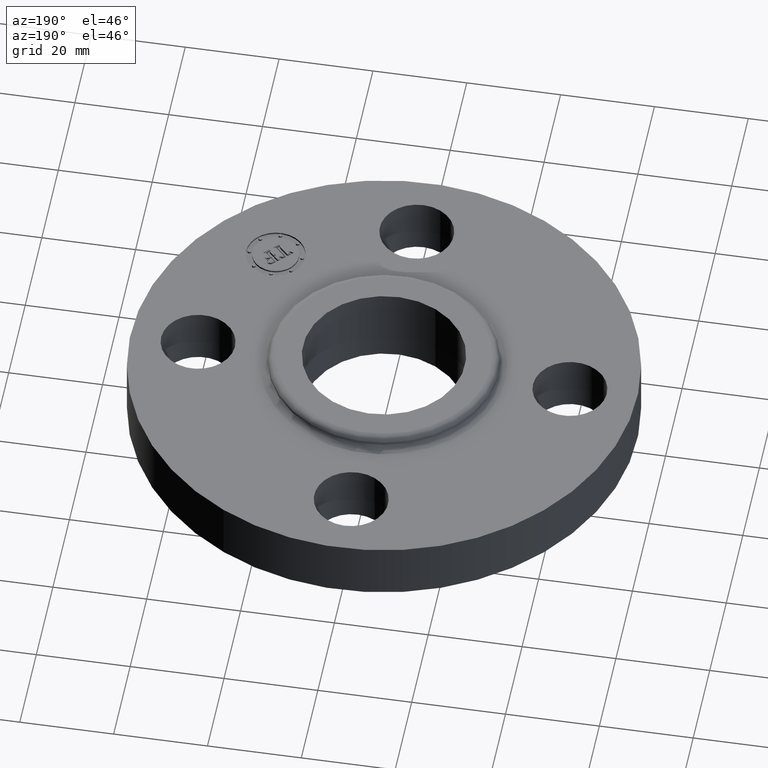
[diagram: clean part render]
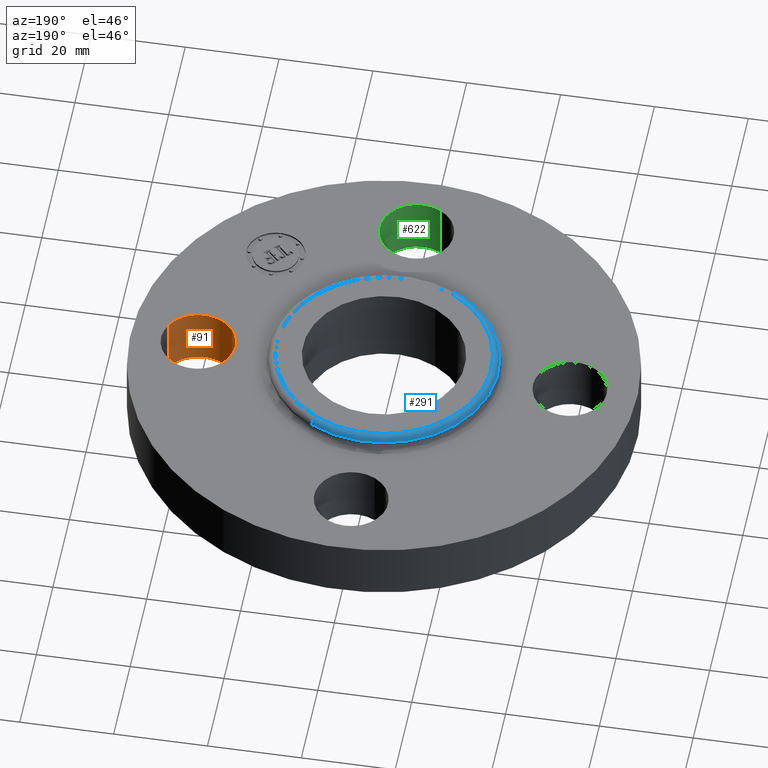
[diagram: same view with three faces highlighted in distinct colors, each labeled with its STEP entity id]
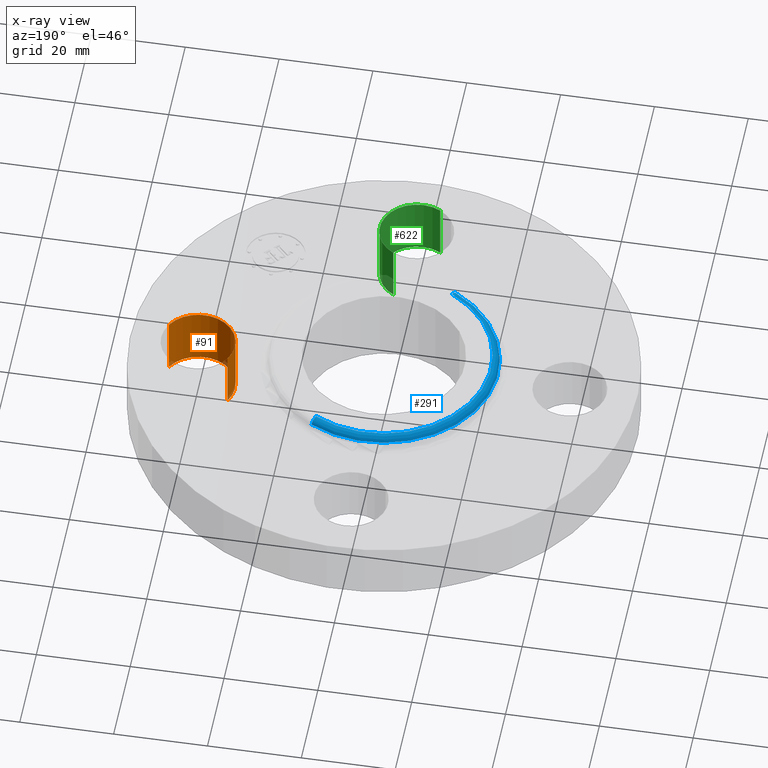
[diagram: x-ray of the same camera — body ghosted, the three highlighted faces saturated]
A machine part, auxiliary view with three faces highlighted in distinct colors.
The next image is the same camera in x-ray (body ghosted, the three faces saturated) — at least one of them is partly hidden behind the body in this view.
Their STEP definitions:

[orange] entity #91 — the highlighted cylindrical surface (partial cylindrical patch) has radius 7.874 mm, axis along (0, -0, -1).
#38=AXIS2_PLACEMENT_3D('Cylinder Axis2P3D',#35,#36,#37) ;
#77=AXIS2_PLACEMENT_3D('Circle Axis2P3D',#75,#76,$) ;
#82=AXIS2_PLACEMENT_3D('Circle Axis2P3D',#80,#81,$) ;
#35=CARTESIAN_POINT('Axis2P3D Location',(1.56000000001,0.,0.496062992128)) ;
#40=CARTESIAN_POINT('Line Origine',(1.28794940582,0.148621916968,0.250000000001)) ;
#44=CARTESIAN_POINT('Vertex',(1.28794940582,0.148621916968,0.)) ;
#46=CARTESIAN_POINT('Vertex',(1.28794940582,0.148621916968,0.500000000002)) ;
#53=CARTESIAN_POINT('Vertex',(1.83205059419,-0.148621916968,0.)) ;
#56=CARTESIAN_POINT('Line Origine',(1.83205059419,-0.148621916968,0.250000000001)) ;
#60=CARTESIAN_POINT('Vertex',(1.83205059419,-0.148621916968,0.500000000002)) ;
#75=CARTESIAN_POINT('Axis2P3D Location',(1.56000000001,0.,0.)) ;
#80=CARTESIAN_POINT('Axis2P3D Location',(1.56000000001,0.,0.500000000002)) ;
#36=DIRECTION('Axis2P3D Direction',(0.,-0.,-0.0393700787402)) ;
#37=DIRECTION('Axis2P3D XDirection',(0.0345504945626,-0.0188750212049,0.)) ;
#41=DIRECTION('Vector Direction',(0.,0.,-0.0393700787402)) ;
#57=DIRECTION('Vector Direction',(0.,0.,-0.0393700787402)) ;
#76=DIRECTION('Axis2P3D Direction',(0.,-0.,-0.0393700787402)) ;
#81=DIRECTION('Axis2P3D Direction',(0.,-0.,-0.0393700787402)) ;
#42=VECTOR('Line Direction',#41,0.0393700787402) ;
#58=VECTOR('Line Direction',#57,0.0393700787402) ;
#86=ORIENTED_EDGE('',*,*,#62,.F.) ;
#87=ORIENTED_EDGE('',*,*,#79,.T.) ;
#88=ORIENTED_EDGE('',*,*,#48,.T.) ;
#89=ORIENTED_EDGE('',*,*,#84,.F.) ;
#91=ADVANCED_FACE('PartBody',(#90),#39,.F.) ;
#78=CIRCLE('generated circle',#77,0.310000000001) ;
#83=CIRCLE('generated circle',#82,0.310000000001) ;
#39=CYLINDRICAL_SURFACE('generated cylinder',#38,0.310000000001) ;
#48=EDGE_CURVE('',#45,#47,#43,.F.) ;
#62=EDGE_CURVE('',#54,#61,#59,.F.) ;
#79=EDGE_CURVE('',#54,#45,#78,.T.) ;
#84=EDGE_CURVE('',#61,#47,#83,.T.) ;
#85=EDGE_LOOP('',(#86,#87,#88,#89)) ;
#90=FACE_OUTER_BOUND('',#85,.T.) ;
#43=LINE('Line',#40,#42) ;
#59=LINE('Line',#56,#58) ;
#45=VERTEX_POINT('',#44) ;
#47=VERTEX_POINT('',#46) ;
#54=VERTEX_POINT('',#53) ;
#61=VERTEX_POINT('',#60) ;

[blue] entity #291 — the highlighted toroidal blend (fillet) surface has major radius 22.8218 mm and minor (blend) radius 1.524 mm.
#239=AXIS2_PLACEMENT_3D('Circle Axis2P3D',#237,#238,$) ;
#252=AXIS2_PLACEMENT_3D('Torus Axis2P3D',#249,#250,#251) ;
#256=AXIS2_PLACEMENT_3D('Circle Axis2P3D',#254,#255,$) ;
#270=AXIS2_PLACEMENT_3D('Circle Axis2P3D',#268,#269,$) ;
#282=AXIS2_PLACEMENT_3D('Circle Axis2P3D',#280,#281,$) ;
#215=CARTESIAN_POINT('Vertex',(0.459089865212,0.840358361433,0.570418890662)) ;
#222=CARTESIAN_POINT('Vertex',(-0.459089865212,-0.840358361433,0.570418890662)) ;
#237=CARTESIAN_POINT('Axis2P3D Location',(0.,0.,0.570418890662)) ;
#249=CARTESIAN_POINT('Axis2P3D Location',(0.,0.,0.560000000002)) ;
#254=CARTESIAN_POINT('Axis2P3D Location',(0.430761345967,0.788503354781,0.560000000002)) ;
#258=CARTESIAN_POINT('Vertex',(0.430761345967,0.788503354781,0.620000000002)) ;
#265=CARTESIAN_POINT('Vertex',(-0.430761345967,-0.788503354781,0.620000000002)) ;
#268=CARTESIAN_POINT('Axis2P3D Location',(-0.430761345967,-0.788503354781,0.560000000002)) ;
#280=CARTESIAN_POINT('Axis2P3D Location',(0.,0.,0.620000000002)) ;
#238=DIRECTION('Axis2P3D Direction',(0.,0.,-0.0393700787402)) ;
#250=DIRECTION('Axis2P3D Direction',(0.,0.,-0.0393700787402)) ;
#251=DIRECTION('Axis2P3D XDirection',(-0.0188750212049,-0.0345504945626,0.)) ;
#255=DIRECTION('Axis2P3D Direction',(-0.0345504945626,0.0188750212049,0.)) ;
#269=DIRECTION('Axis2P3D Direction',(0.0345504945626,-0.0188750212049,0.)) ;
#281=DIRECTION('Axis2P3D Direction',(0.,0.,-0.0393700787402)) ;
#286=ORIENTED_EDGE('',*,*,#241,.F.) ;
#287=ORIENTED_EDGE('',*,*,#272,.T.) ;
#288=ORIENTED_EDGE('',*,*,#284,.T.) ;
#289=ORIENTED_EDGE('',*,*,#260,.F.) ;
#291=ADVANCED_FACE('PartBody',(#290),#253,.T.) ;
#240=CIRCLE('generated circle',#239,0.957583249629) ;
#257=CIRCLE('generated circle',#256,0.0600000000002) ;
#271=CIRCLE('generated circle',#270,0.0600000000002) ;
#283=CIRCLE('generated circle',#282,0.898494784448) ;
#253=TOROIDAL_SURFACE('homeo Torus',#252,0.898494784448,0.0600000000002) ;
#241=EDGE_CURVE('',#223,#216,#240,.T.) ;
#260=EDGE_CURVE('',#216,#259,#257,.F.) ;
#272=EDGE_CURVE('',#223,#266,#271,.F.) ;
#284=EDGE_CURVE('',#266,#259,#283,.T.) ;
#285=EDGE_LOOP('',(#286,#287,#288,#289)) ;
#290=FACE_OUTER_BOUND('',#285,.T.) ;
#216=VERTEX_POINT('',#215) ;
#223=VERTEX_POINT('',#222) ;
#259=VERTEX_POINT('',#258) ;
#266=VERTEX_POINT('',#265) ;

[green] entity #622 — the highlighted cylindrical surface (partial cylindrical patch) has radius 7.874 mm, axis along (0, -0, -1).
#453=AXIS2_PLACEMENT_3D('Circle Axis2P3D',#451,#452,$) ;
#595=AXIS2_PLACEMENT_3D('Cylinder Axis2P3D',#592,#593,#594) ;
#613=AXIS2_PLACEMENT_3D('Circle Axis2P3D',#611,#612,$) ;
#451=CARTESIAN_POINT('Axis2P3D Location',(-6.99353086378E-017,-1.56000000001,0.)) ;
#455=CARTESIAN_POINT('Vertex',(0.148621916968,-1.28794940582,0.)) ;
#457=CARTESIAN_POINT('Vertex',(-0.148621916968,-1.83205059419,0.)) ;
#592=CARTESIAN_POINT('Axis2P3D Location',(-1.84218784217E-016,-1.56000000001,0.496062992128)) ;
#597=CARTESIAN_POINT('Line Origine',(0.148621916968,-1.28794940582,0.250000000001)) ;
#601=CARTESIAN_POINT('Vertex',(0.148621916968,-1.28794940582,0.500000000002)) ;
#604=CARTESIAN_POINT('Line Origine',(-0.148621916968,-1.83205059419,0.250000000001)) ;
#608=CARTESIAN_POINT('Vertex',(-0.148621916968,-1.83205059419,0.500000000002)) ;
#611=CARTESIAN_POINT('Axis2P3D Location',(-1.84218784217E-016,-1.56000000001,0.500000000002)) ;
#452=DIRECTION('Axis2P3D Direction',(0.,0.,-0.0393700787402)) ;
#593=DIRECTION('Axis2P3D Direction',(0.,-0.,-0.0393700787402)) ;
#594=DIRECTION('Axis2P3D XDirection',(-0.0188750212049,-0.0345504945626,0.)) ;
#598=DIRECTION('Vector Direction',(0.,0.,-0.0393700787402)) ;
#605=DIRECTION('Vector Direction',(0.,0.,-0.0393700787402)) ;
#612=DIRECTION('Axis2P3D Direction',(0.,-0.,-0.0393700787402)) ;
#599=VECTOR('Line Direction',#598,0.0393700787402) ;
#606=VECTOR('Line Direction',#605,0.0393700787402) ;
#617=ORIENTED_EDGE('',*,*,#603,.F.) ;
#618=ORIENTED_EDGE('',*,*,#459,.T.) ;
#619=ORIENTED_EDGE('',*,*,#610,.T.) ;
#620=ORIENTED_EDGE('',*,*,#615,.F.) ;
#622=ADVANCED_FACE('PartBody',(#621),#596,.F.) ;
#454=CIRCLE('generated circle',#453,0.310000000001) ;
#614=CIRCLE('generated circle',#613,0.310000000001) ;
#596=CYLINDRICAL_SURFACE('generated cylinder',#595,0.310000000001) ;
#459=EDGE_CURVE('',#456,#458,#454,.T.) ;
#603=EDGE_CURVE('',#456,#602,#600,.F.) ;
#610=EDGE_CURVE('',#458,#609,#607,.F.) ;
#615=EDGE_CURVE('',#602,#609,#614,.T.) ;
#616=EDGE_LOOP('',(#617,#618,#619,#620)) ;
#621=FACE_OUTER_BOUND('',#616,.T.) ;
#600=LINE('Line',#597,#599) ;
#607=LINE('Line',#604,#606) ;
#456=VERTEX_POINT('',#455) ;
#458=VERTEX_POINT('',#457) ;
#602=VERTEX_POINT('',#601) ;
#609=VERTEX_POINT('',#608) ;